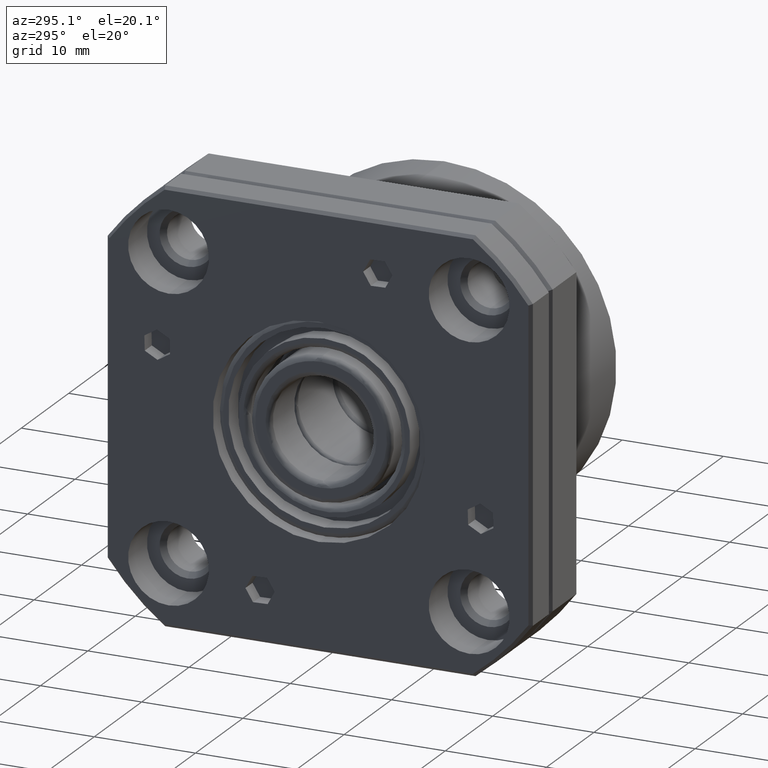
[diagram: clean part render]
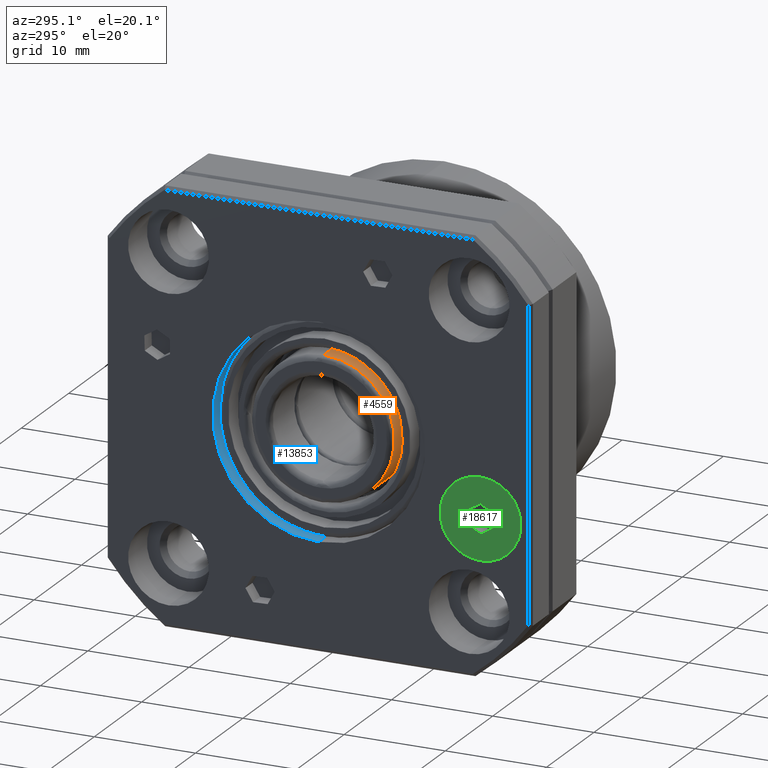
[diagram: same view with three faces highlighted in distinct colors, each labeled with its STEP entity id]
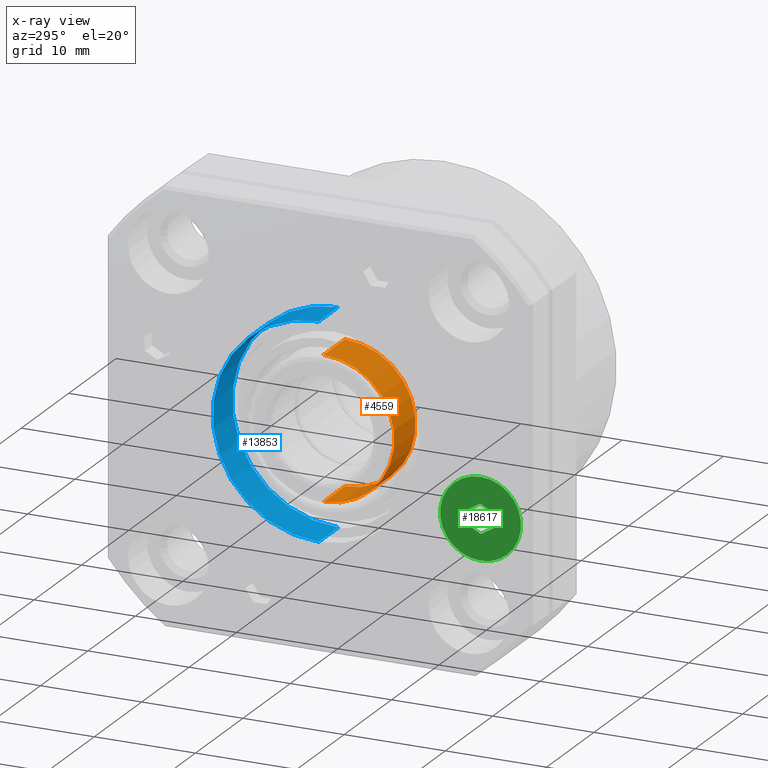
[diagram: x-ray of the same camera — body ghosted, the three highlighted faces saturated]
A machine part, auxiliary view with three faces highlighted in distinct colors.
The next image is the same camera in x-ray (body ghosted, the three faces saturated) — at least one of them is partly hidden behind the body in this view.
Their STEP definitions:

[orange] entity #4559 — the highlighted cylindrical surface (partial cylindrical patch) has radius 7 mm, axis along (-1, -0, -0).
#771 = CIRCLE ( 'NONE', #15513, 7.000000000000000000 ) ;
#1163 = CIRCLE ( 'NONE', #14484, 7.000000000000000000 ) ;
#1331 = DIRECTION ( 'NONE',  ( -1.000000000000000000, -0.0000000000000000000, -0.0000000000000000000 ) ) ;
#1442 = CARTESIAN_POINT ( 'NONE',  ( -3.000000000000009800, 0.0000000000000000000, 7.000000000000000000 ) ) ;
#1662 = LINE ( 'NONE', #5907, #4256 ) ;
#1842 = FACE_OUTER_BOUND ( 'NONE', #3684, .T. ) ;
#2040 = EDGE_CURVE ( 'NONE', #2349, #11720, #2153, .T. ) ;
#2153 = LINE ( 'NONE', #3396, #17395 ) ;
#2349 = VERTEX_POINT ( 'NONE', #16273 ) ;
#2739 = ORIENTED_EDGE ( 'NONE', *, *, #8916, .T. ) ;
#3223 = DIRECTION ( 'NONE',  ( -1.000000000000000000, -0.0000000000000000000, -0.0000000000000000000 ) ) ;
#3396 = CARTESIAN_POINT ( 'NONE',  ( -18.56152153273633200, 0.0000000000000000000, 7.000000000000000000 ) ) ;
#3451 = ORIENTED_EDGE ( 'NONE', *, *, #16889, .F. ) ;
#3684 = EDGE_LOOP ( 'NONE', ( #3451, #5425, #15546, #2739 ) ) ;
#3976 = VERTEX_POINT ( 'NONE', #4232 ) ;
#4232 = CARTESIAN_POINT ( 'NONE',  ( 1.499999999999987600, 8.572527594031473200E-016, -7.000000000000000000 ) ) ;
#4256 = VECTOR ( 'NONE', #1331, 1000.000000000000000 ) ;
#4559 = ADVANCED_FACE ( 'NONE', ( #1842 ), #16182, .T. ) ;
#5425 = ORIENTED_EDGE ( 'NONE', *, *, #15223, .T. ) ;
#5907 = CARTESIAN_POINT ( 'NONE',  ( -18.56152153273633200, 8.572527594031473200E-016, -7.000000000000000000 ) ) ;
#6015 = CARTESIAN_POINT ( 'NONE',  ( 1.499999999999987600, 0.0000000000000000000, 0.0000000000000000000 ) ) ;
#7475 = DIRECTION ( 'NONE',  ( 0.0000000000000000000, 0.0000000000000000000, 1.000000000000000000 ) ) ;
#8461 = CARTESIAN_POINT ( 'NONE',  ( -18.56152153273633200, 0.0000000000000000000, 0.0000000000000000000 ) ) ;
#8882 = DIRECTION ( 'NONE',  ( 1.000000000000000000, 0.0000000000000000000, 0.0000000000000000000 ) ) ;
#8916 = EDGE_CURVE ( 'NONE', #11720, #12439, #1163, .T. ) ;
#8981 = DIRECTION ( 'NONE',  ( -1.000000000000000000, -0.0000000000000000000, -0.0000000000000000000 ) ) ;
#11310 = CARTESIAN_POINT ( 'NONE',  ( -3.000000000000009800, 8.572527594031473200E-016, -7.000000000000000000 ) ) ;
#11720 = VERTEX_POINT ( 'NONE', #1442 ) ;
#12439 = VERTEX_POINT ( 'NONE', #11310 ) ;
#13387 = DIRECTION ( 'NONE',  ( 0.0000000000000000000, 0.0000000000000000000, 1.000000000000000000 ) ) ;
#14484 = AXIS2_PLACEMENT_3D ( 'NONE', #17663, #8882, #19137 ) ;
#15223 = EDGE_CURVE ( 'NONE', #3976, #2349, #771, .T. ) ;
#15513 = AXIS2_PLACEMENT_3D ( 'NONE', #6015, #16259, #7475 ) ;
#15546 = ORIENTED_EDGE ( 'NONE', *, *, #2040, .T. ) ;
#16182 = CYLINDRICAL_SURFACE ( 'NONE', #17725, 7.000000000000000000 ) ;
#16259 = DIRECTION ( 'NONE',  ( -1.000000000000000000, -0.0000000000000000000, -0.0000000000000000000 ) ) ;
#16273 = CARTESIAN_POINT ( 'NONE',  ( 1.499999999999987600, 0.0000000000000000000, 7.000000000000000000 ) ) ;
#16889 = EDGE_CURVE ( 'NONE', #3976, #12439, #1662, .T. ) ;
#17395 = VECTOR ( 'NONE', #3223, 1000.000000000000000 ) ;
#17663 = CARTESIAN_POINT ( 'NONE',  ( -3.000000000000009800, 0.0000000000000000000, 0.0000000000000000000 ) ) ;
#17725 = AXIS2_PLACEMENT_3D ( 'NONE', #8461, #8981, #13387 ) ;
#19137 = DIRECTION ( 'NONE',  ( 0.0000000000000000000, 0.0000000000000000000, 1.000000000000000000 ) ) ;

[blue] entity #13853 — the highlighted cylindrical surface (partial cylindrical patch) has radius 10.5 mm, axis along (-1, 0, 0).
#95 = DIRECTION ( 'NONE',  ( 0.0000000000000000000, 0.0000000000000000000, 1.000000000000000000 ) ) ;
#837 = DIRECTION ( 'NONE',  ( 0.0000000000000000000, 0.0000000000000000000, 1.000000000000000000 ) ) ;
#1061 = EDGE_LOOP ( 'NONE', ( #17801, #7925, #18499, #2209 ) ) ;
#1426 = CARTESIAN_POINT ( 'NONE',  ( -3.969999999999998000, -8.673617379884035500E-016, -3.469446951953614200E-015 ) ) ;
#2097 = CARTESIAN_POINT ( 'NONE',  ( -3.969999999999998000, -8.673617379884035500E-016, 10.49999999999999800 ) ) ;
#2209 = ORIENTED_EDGE ( 'NONE', *, *, #7177, .T. ) ;
#2233 = FACE_OUTER_BOUND ( 'NONE', #1061, .T. ) ;
#2935 = DIRECTION ( 'NONE',  ( 0.0000000000000000000, 0.0000000000000000000, 1.000000000000000000 ) ) ;
#4229 = LINE ( 'NONE', #6047, #8179 ) ;
#5003 = VERTEX_POINT ( 'NONE', #16266 ) ;
#5678 = CARTESIAN_POINT ( 'NONE',  ( -13.57863270966724500, 4.185174011163175800E-016, -10.50000000000000500 ) ) ;
#5779 = VERTEX_POINT ( 'NONE', #18516 ) ;
#5807 = CYLINDRICAL_SURFACE ( 'NONE', #10469, 10.50000000000000200 ) ;
#6047 = CARTESIAN_POINT ( 'NONE',  ( -13.57863270966724500, -8.673617379884035500E-016, 10.49999999999999800 ) ) ;
#7177 = EDGE_CURVE ( 'NONE', #17480, #5003, #12840, .T. ) ;
#7283 = VECTOR ( 'NONE', #15896, 1000.000000000000000 ) ;
#7596 = DIRECTION ( 'NONE',  ( -1.000000000000000000, 0.0000000000000000000, 0.0000000000000000000 ) ) ;
#7925 = ORIENTED_EDGE ( 'NONE', *, *, #16307, .F. ) ;
#8179 = VECTOR ( 'NONE', #14794, 1000.000000000000000 ) ;
#8266 = EDGE_CURVE ( 'NONE', #17041, #5003, #15072, .T. ) ;
#9219 = CARTESIAN_POINT ( 'NONE',  ( 0.1800000000000030700, 4.185174011163175800E-016, -10.50000000000000500 ) ) ;
#9793 = DIRECTION ( 'NONE',  ( -1.000000000000000000, 0.0000000000000000000, 0.0000000000000000000 ) ) ;
#10469 = AXIS2_PLACEMENT_3D ( 'NONE', #12040, #7596, #95 ) ;
#10943 = CIRCLE ( 'NONE', #11121, 10.50000000000000200 ) ;
#11121 = AXIS2_PLACEMENT_3D ( 'NONE', #18535, #9793, #837 ) ;
#11823 = DIRECTION ( 'NONE',  ( -1.000000000000000000, 0.0000000000000000000, 0.0000000000000000000 ) ) ;
#12040 = CARTESIAN_POINT ( 'NONE',  ( -13.57863270966724500, -8.673617379884035500E-016, -3.469446951953614200E-015 ) ) ;
#12840 = CIRCLE ( 'NONE', #18611, 10.50000000000000200 ) ;
#13853 = ADVANCED_FACE ( 'NONE', ( #2233 ), #5807, .F. ) ;
#14794 = DIRECTION ( 'NONE',  ( -1.000000000000000000, 0.0000000000000000000, 0.0000000000000000000 ) ) ;
#15072 = LINE ( 'NONE', #5678, #7283 ) ;
#15896 = DIRECTION ( 'NONE',  ( -1.000000000000000000, 0.0000000000000000000, 0.0000000000000000000 ) ) ;
#16266 = CARTESIAN_POINT ( 'NONE',  ( -3.969999999999998000, 4.185174011163175800E-016, -10.50000000000000500 ) ) ;
#16307 = EDGE_CURVE ( 'NONE', #5779, #17041, #10943, .T. ) ;
#16496 = EDGE_CURVE ( 'NONE', #5779, #17480, #4229, .T. ) ;
#17041 = VERTEX_POINT ( 'NONE', #9219 ) ;
#17480 = VERTEX_POINT ( 'NONE', #2097 ) ;
#17801 = ORIENTED_EDGE ( 'NONE', *, *, #8266, .F. ) ;
#18499 = ORIENTED_EDGE ( 'NONE', *, *, #16496, .T. ) ;
#18516 = CARTESIAN_POINT ( 'NONE',  ( 0.1800000000000030700, -8.673617379884035500E-016, 10.49999999999999800 ) ) ;
#18535 = CARTESIAN_POINT ( 'NONE',  ( 0.1800000000000030700, -8.673617379884035500E-016, -3.469446951953614200E-015 ) ) ;
#18611 = AXIS2_PLACEMENT_3D ( 'NONE', #1426, #11823, #2935 ) ;

[green] entity #18617 — the highlighted planar face has unit normal (1, 0, 0).
#74 = EDGE_LOOP ( 'NONE', ( #6997, #5056 ) ) ;
#144 = CARTESIAN_POINT ( 'NONE',  ( -3.969999999999994400, -17.20705889311146900, -5.062804919616668000 ) ) ;
#447 = AXIS2_PLACEMENT_3D ( 'NONE', #14571, #14601, #14529 ) ;
#455 = LINE ( 'NONE', #2787, #10964 ) ;
#500 = CIRCLE ( 'NONE', #447, 3.999999999961659100 ) ;
#579 = VERTEX_POINT ( 'NONE', #2105 ) ;
#878 = VECTOR ( 'NONE', #1690, 1000.000000000000000 ) ;
#881 = DIRECTION ( 'NONE',  ( 0.0000000000000000000, 0.0000000000000000000, 1.000000000000000000 ) ) ;
#936 = VERTEX_POINT ( 'NONE', #17774 ) ;
#1119 = FACE_OUTER_BOUND ( 'NONE', #74, .T. ) ;
#1127 = EDGE_CURVE ( 'NONE', #16746, #4260, #500, .T. ) ;
#1222 = ORIENTED_EDGE ( 'NONE', *, *, #19004, .F. ) ;
#1339 = VERTEX_POINT ( 'NONE', #12185 ) ;
#1690 = DIRECTION ( 'NONE',  ( 0.0000000000000000000, 0.8777983273158424000, 0.4790303712307908400 ) ) ;
#1698 = CARTESIAN_POINT ( 'NONE',  ( -3.969999999967817900, -15.97477455336045800, -1.814342436574675900 ) ) ;
#1749 = EDGE_LOOP ( 'NONE', ( #11317, #1222, #4247, #3495, #2074, #14244 ) ) ;
#1976 = CIRCLE ( 'NONE', #11148, 3.999999999961659100 ) ;
#2020 = LINE ( 'NONE', #4064, #17269 ) ;
#2074 = ORIENTED_EDGE ( 'NONE', *, *, #15444, .F. ) ;
#2105 = CARTESIAN_POINT ( 'NONE',  ( -3.969999999999997100, -16.00948296503447900, -7.257300737906270200 ) ) ;
#2211 = EDGE_CURVE ( 'NONE', #5354, #1339, #4278, .T. ) ;
#2277 = DIRECTION ( 'NONE',  ( 0.0000000000000000000, -0.8537516343280783200, 0.5206804652396085400 ) ) ;
#2327 = DIRECTION ( 'NONE',  ( 0.0000000000000000000, 0.02404669298775994100, 0.9997108364704027100 ) ) ;
#2462 = CARTESIAN_POINT ( 'NONE',  ( -3.969999999967817900, -15.97477455336045800, -9.814342436497995000 ) ) ;
#2787 = CARTESIAN_POINT ( 'NONE',  ( -3.969999999999994400, -14.74249021360947200, -6.565879953456009900 ) ) ;
#3467 = VECTOR ( 'NONE', #2277, 1000.000000000000100 ) ;
#3495 = ORIENTED_EDGE ( 'NONE', *, *, #19124, .F. ) ;
#3955 = LINE ( 'NONE', #11178, #3467 ) ;
#4064 = CARTESIAN_POINT ( 'NONE',  ( -3.969999999999994400, -15.94006614168645100, -4.371384135166406900 ) ) ;
#4247 = ORIENTED_EDGE ( 'NONE', *, *, #12894, .F. ) ;
#4260 = VERTEX_POINT ( 'NONE', #1698 ) ;
#4278 = LINE ( 'NONE', #5817, #15085 ) ;
#4301 = DIRECTION ( 'NONE',  ( 0.0000000000000000000, -0.8777983273158409500, -0.4790303712307933400 ) ) ;
#4537 = DIRECTION ( 'NONE',  ( 1.000000000000000000, 3.584817246825500800E-031, 2.179563214974512900E-031 ) ) ;
#4734 = AXIS2_PLACEMENT_3D ( 'NONE', #8941, #4537, #14818 ) ;
#4878 = VERTEX_POINT ( 'NONE', #5964 ) ;
#5056 = ORIENTED_EDGE ( 'NONE', *, *, #1127, .F. ) ;
#5354 = VERTEX_POINT ( 'NONE', #9292 ) ;
#5817 = CARTESIAN_POINT ( 'NONE',  ( -3.969999999999994400, -14.70778180193545600, -5.122921652086075600 ) ) ;
#5964 = CARTESIAN_POINT ( 'NONE',  ( -3.969999999999997100, -17.20705889311146600, -5.062804919616668000 ) ) ;
#6997 = ORIENTED_EDGE ( 'NONE', *, *, #13259, .F. ) ;
#7136 = VERTEX_POINT ( 'NONE', #7258 ) ;
#7258 = CARTESIAN_POINT ( 'NONE',  ( -3.969999999999996200, -15.94006614168645100, -4.371384135166406000 ) ) ;
#8941 = CARTESIAN_POINT ( 'NONE',  ( -3.969999999999994400, -12.46358124409710100, -3.898220951613165400 ) ) ;
#9067 = FACE_BOUND ( 'NONE', #1749, .T. ) ;
#9292 = CARTESIAN_POINT ( 'NONE',  ( -3.969999999999996200, -14.70778180193545600, -5.122921652086076500 ) ) ;
#9296 = LINE ( 'NONE', #144, #878 ) ;
#9842 = DIRECTION ( 'NONE',  ( 1.000000000000000000, -0.0000000000000000000, -0.0000000000000000000 ) ) ;
#10600 = VECTOR ( 'NONE', #2327, 1000.000000000000100 ) ;
#10964 = VECTOR ( 'NONE', #4301, 1000.000000000000000 ) ;
#11148 = AXIS2_PLACEMENT_3D ( 'NONE', #18578, #9842, #881 ) ;
#11178 = CARTESIAN_POINT ( 'NONE',  ( -3.969999999999994400, -16.00948296503447900, -7.257300737906270200 ) ) ;
#11317 = ORIENTED_EDGE ( 'NONE', *, *, #12094, .F. ) ;
#12094 = EDGE_CURVE ( 'NONE', #7136, #5354, #2020, .T. ) ;
#12185 = CARTESIAN_POINT ( 'NONE',  ( -3.969999999999997100, -14.74249021360947200, -6.565879953456009900 ) ) ;
#12894 = EDGE_CURVE ( 'NONE', #936, #4878, #17920, .T. ) ;
#13259 = EDGE_CURVE ( 'NONE', #4260, #16746, #1976, .T. ) ;
#14244 = ORIENTED_EDGE ( 'NONE', *, *, #2211, .F. ) ;
#14529 = DIRECTION ( 'NONE',  ( 0.0000000000000000000, 0.0000000000000000000, 1.000000000000000000 ) ) ;
#14571 = CARTESIAN_POINT ( 'NONE',  ( -3.969999999967817900, -15.97477455336045800, -5.814342436536335000 ) ) ;
#14601 = DIRECTION ( 'NONE',  ( 1.000000000000000000, -0.0000000000000000000, -0.0000000000000000000 ) ) ;
#14817 = DIRECTION ( 'NONE',  ( 0.0000000000000000000, -0.02404669298776473300, -0.9997108364704026000 ) ) ;
#14818 = DIRECTION ( 'NONE',  ( -3.584817246825500800E-031, 1.000000000000000000, 0.0000000000000000000 ) ) ;
#15085 = VECTOR ( 'NONE', #14817, 1000.000000000000200 ) ;
#15444 = EDGE_CURVE ( 'NONE', #1339, #579, #455, .T. ) ;
#15840 = DIRECTION ( 'NONE',  ( 0.0000000000000000000, 0.8537516343280776600, -0.5206804652396095400 ) ) ;
#16746 = VERTEX_POINT ( 'NONE', #2462 ) ;
#17269 = VECTOR ( 'NONE', #15840, 1000.000000000000200 ) ;
#17660 = PLANE ( 'NONE',  #4734 ) ;
#17774 = CARTESIAN_POINT ( 'NONE',  ( -3.969999999999997100, -17.24176730478547600, -6.505763220986599600 ) ) ;
#17920 = LINE ( 'NONE', #18634, #10600 ) ;
#18578 = CARTESIAN_POINT ( 'NONE',  ( -3.969999999967817900, -15.97477455336045800, -5.814342436536335000 ) ) ;
#18617 = ADVANCED_FACE ( 'NONE', ( #1119, #9067 ), #17660, .F. ) ;
#18634 = CARTESIAN_POINT ( 'NONE',  ( -3.969999999999994400, -17.24176730478547600, -6.505763220986600500 ) ) ;
#19004 = EDGE_CURVE ( 'NONE', #4878, #7136, #9296, .T. ) ;
#19124 = EDGE_CURVE ( 'NONE', #579, #936, #3955, .T. ) ;